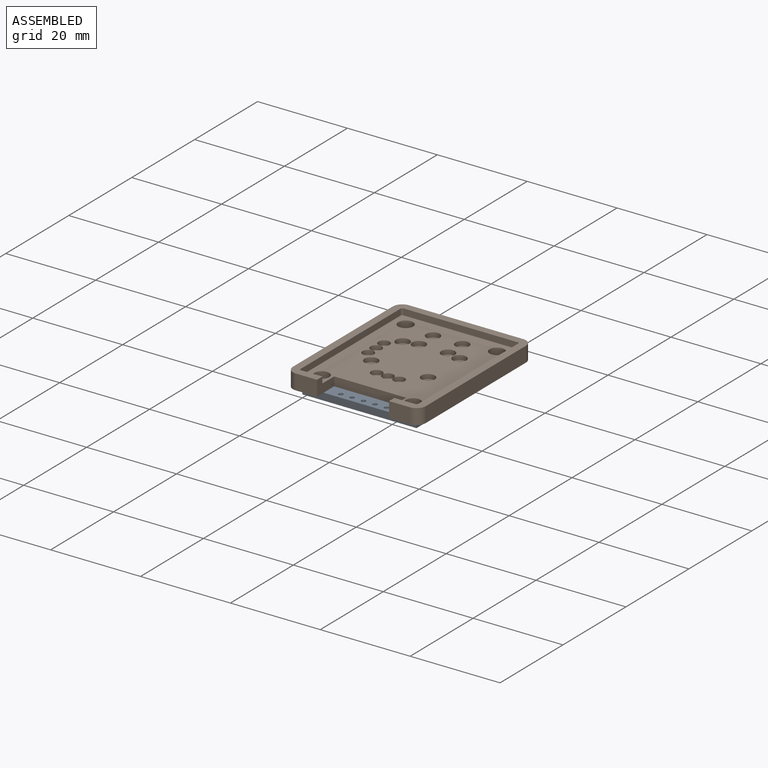
[diagram: assembled view]
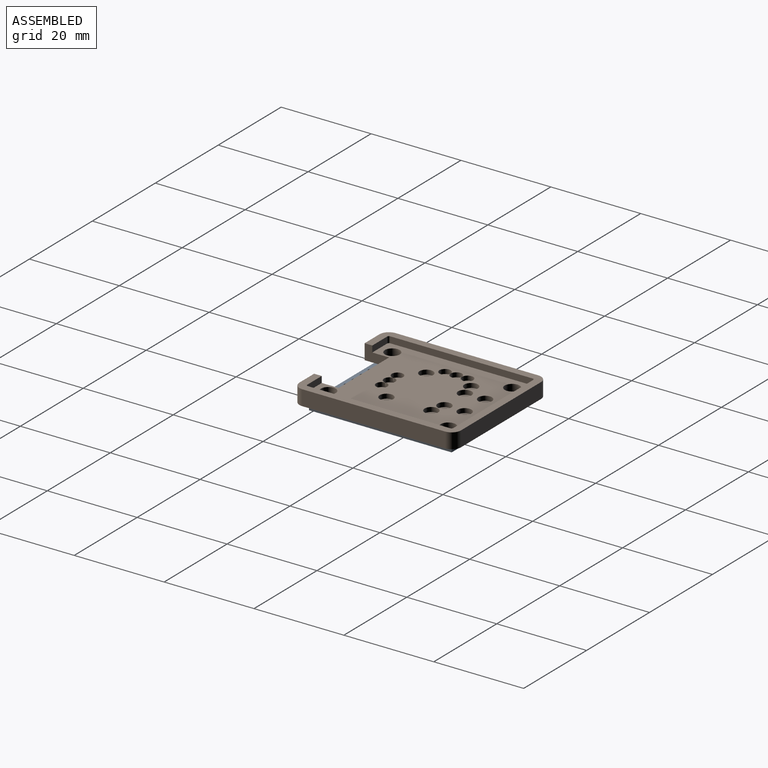
[diagram: assembled view, second angle]
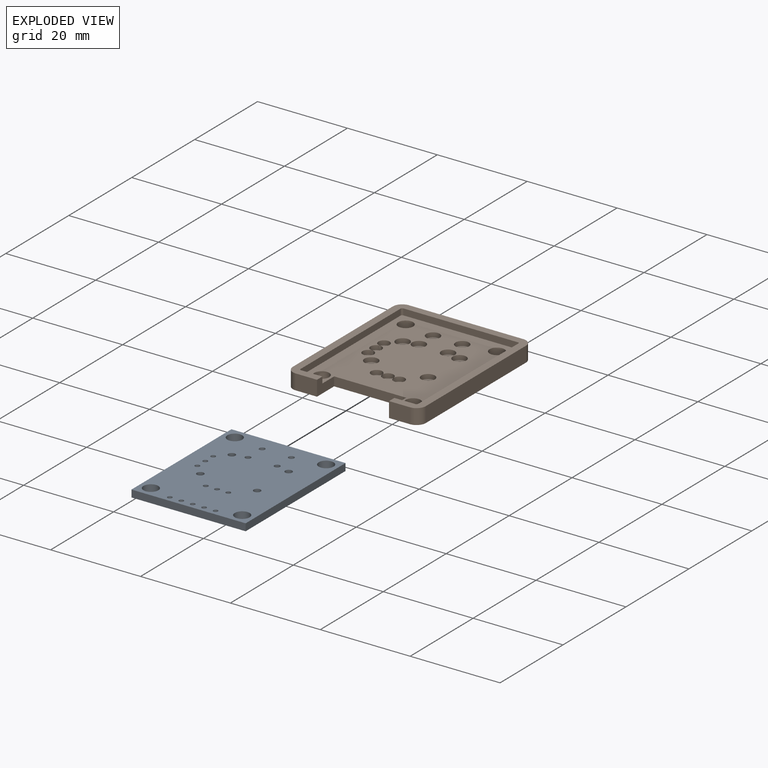
[diagram: exploded view]
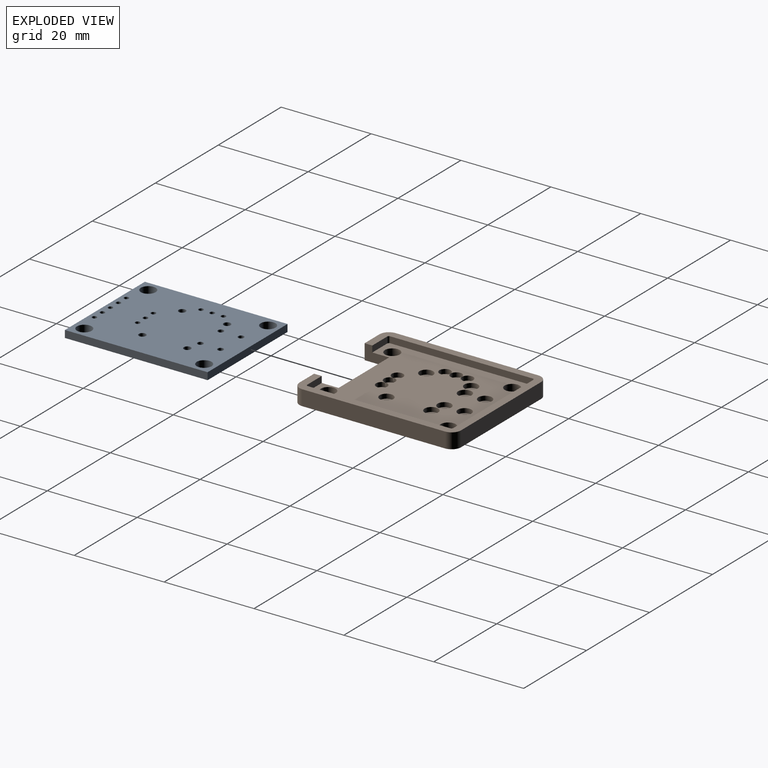
[diagram: exploded view, second angle]
FCSTD DOCUMENT  (FreeCAD 1.0RUnknown)
Label: thumbstick-breakout-orig
License: All rights reserved
LicenseURL: https://en.wikipedia.org/wiki/All_rights_reserved
objects: Sketcher::SketchObject×12, App::Part×4, PartDesign::Pad×4, PartDesign::ShapeBinder×2, PartDesign::Pocket×2, PartDesign::Body×2, PartDesign::CoordinateSystem×1, Part::Feature×1, App::Link×1, PartDesign::Plane×1
note: 49 computed .brp shape members not serialized (recipe doc carries the construction recipe); baked Part::Feature solids carry a one-line shape summary decoded from their .brp

FEATURE [PartDesign::CoordinateSystem] Local_CS_bbd4
  AttacherType = Attacher::AttachEngine3D
  MapMode = 2
FEATURE [Part::Feature] Pcb_bbd4
  Placement = pos=(-137.3,117.78,0) rot=(0,0,1;0rad)
  shape: bbox 25.4 x 31.75 x 1.6 mm, 29 faces (baked)
FEATURE [Sketcher::SketchObject] PCB_Sketch_bbd4
  ArcFitTolerance = 1e-06
  FullyConstrained = false
  MakeInternals = false
  sketch-geometry (4):
    g0: LineSegment StartX=0 StartY=31.75 StartZ=0 EndX=0 EndY=0 EndZ=0
    g1: LineSegment StartX=25.4 StartY=31.75 StartZ=0 EndX=0 EndY=31.75 EndZ=0
    g2: LineSegment StartX=0 StartY=0 StartZ=0 EndX=25.4 EndY=0 EndZ=0
    g3: LineSegment StartX=25.4 StartY=0 StartZ=0 EndX=25.4 EndY=31.75 EndZ=0
  constraints (4):
    c: Coincident(g0,g2)
    c: Coincident(g0,g1)
    c: Coincident(g2,g3)
    c: Coincident(g1,g3)
FEATURE [App::Part] Board_Geoms_bbd4
  Group = -> [Pcb_bbd4,PCB_Sketch_bbd4]
  Origin = -> Origin
FEATURE [App::Part] Step_Models_bbd4
  Origin = -> Origin002
FEATURE [App::Part] Board_bbd4  label="thumbstick-breakout"
  Group = -> [Local_CS_bbd4,Board_Geoms_bbd4,Step_Models_bbd4]
  Origin = -> Origin001
FEATURE [Sketcher::SketchObject] Sketch
  ArcFitTolerance = 1e-06
  FullyConstrained = false
  MakeInternals = false
  sketch-geometry (8):
    g0: LineSegment StartX=-0.1 StartY=31.75 StartZ=0 EndX=-0.1 EndY=0 EndZ=0
    g1: ArcOfCircle CenterX=0 CenterY=0 CenterZ=0 NormalX=0 NormalY=0 NormalZ=1 AngleXU=0 Radius=0.1 StartAngle=3.14159 EndAngle=4.71239
    g2: LineSegment StartX=0 StartY=-0.1 StartZ=0 EndX=25.4 EndY=-0.1 EndZ=0
    g3: ArcOfCircle CenterX=25.4 CenterY=0 CenterZ=0 NormalX=0 NormalY=0 NormalZ=1 AngleXU=1.5708 Radius=0.1 StartAngle=3.14159 EndAngle=4.71239
    g4: LineSegment StartX=25.5 StartY=0 StartZ=0 EndX=25.5 EndY=31.75 EndZ=0
    g5: ArcOfCircle CenterX=25.4 CenterY=31.75 CenterZ=0 NormalX=0 NormalY=0 NormalZ=1 AngleXU=-3.14159 Radius=0.1 StartAngle=3.14159 EndAngle=4.71239
    g6: LineSegment StartX=25.4 StartY=31.85 StartZ=0 EndX=0 EndY=31.85 EndZ=0
    g7: ArcOfCircle CenterX=0 CenterY=31.75 CenterZ=0 NormalX=0 NormalY=0 NormalZ=1 AngleXU=-1.5708 Radius=0.1 StartAngle=3.14159 EndAngle=4.71239
  constraints (12):
    c: Vertical(g0)
    c: Coincident(g0,g1)
    c: Coincident(g1,g2)
    c: Horizontal(g2)
    c: Coincident(g2,g3)
    c: Coincident(g3,g4)
    c: Vertical(g4)
    c: Coincident(g4,g5)
    c: Coincident(g5,g6)
    c: Horizontal(g6)
    c: Coincident(g6,g7)
    c: Coincident(g7,g0)
FEATURE [Sketcher::SketchObject] Sketch001
  ArcFitTolerance = 1e-06
  FullyConstrained = false
  MakeInternals = false
  sketch-geometry (8):
    g0: LineSegment StartX=-2.1 StartY=31.75 StartZ=0 EndX=-2.1 EndY=0 EndZ=0
    g1: ArcOfCircle CenterX=0 CenterY=0 CenterZ=0 NormalX=0 NormalY=0 NormalZ=1 AngleXU=0 Radius=2.1 StartAngle=3.14159 EndAngle=4.71239
    g2: LineSegment StartX=-4e-16 StartY=-2.1 StartZ=0 EndX=25.4 EndY=-2.1 EndZ=0
    g3: ArcOfCircle CenterX=25.4 CenterY=0 CenterZ=0 NormalX=0 NormalY=0 NormalZ=1 AngleXU=1.5708 Radius=2.1 StartAngle=3.14159 EndAngle=4.71239
    g4: LineSegment StartX=27.5 StartY=-6e-16 StartZ=0 EndX=27.5 EndY=31.75 EndZ=0
    g5: ArcOfCircle CenterX=25.4 CenterY=31.75 CenterZ=0 NormalX=0 NormalY=0 NormalZ=1 AngleXU=-3.14159 Radius=2.1 StartAngle=3.14159 EndAngle=4.71239
    g6: LineSegment StartX=25.4 StartY=33.85 StartZ=0 EndX=0 EndY=33.85 EndZ=0
    g7: ArcOfCircle CenterX=0 CenterY=31.75 CenterZ=0 NormalX=0 NormalY=0 NormalZ=1 AngleXU=-1.5708 Radius=2.1 StartAngle=3.14159 EndAngle=4.71239
  constraints (12):
    c: Vertical(g0)
    c: Coincident(g0,g1)
    c: Coincident(g1,g2)
    c: Horizontal(g2)
    c: Coincident(g2,g3)
    c: Coincident(g3,g4)
    c: Vertical(g4)
    c: Coincident(g4,g5)
    c: Coincident(g5,g6)
    c: Horizontal(g6)
    c: Coincident(g6,g7)
    c: Coincident(g7,g0)
FEATURE [Sketcher::SketchObject] Sketch003
  ArcFitTolerance = 1e-06
  FullyConstrained = false
  MakeInternals = false
  sketch-geometry (8):
    g0: LineSegment StartX=-2.1 StartY=31.75 StartZ=0 EndX=-2.1 EndY=0 EndZ=0
    g1: ArcOfCircle CenterX=0 CenterY=0 CenterZ=0 NormalX=0 NormalY=0 NormalZ=1 AngleXU=0 Radius=2.1 StartAngle=3.14159 EndAngle=4.71239
    g2: LineSegment StartX=-4e-16 StartY=-2.1 StartZ=0 EndX=25.4 EndY=-2.1 EndZ=0
    g3: ArcOfCircle CenterX=25.4 CenterY=0 CenterZ=0 NormalX=0 NormalY=0 NormalZ=1 AngleXU=1.5708 Radius=2.1 StartAngle=3.14159 EndAngle=4.71239
    g4: LineSegment StartX=27.5 StartY=-6e-16 StartZ=0 EndX=27.5 EndY=31.75 EndZ=0
    g5: ArcOfCircle CenterX=25.4 CenterY=31.75 CenterZ=0 NormalX=0 NormalY=0 NormalZ=1 AngleXU=-3.14159 Radius=2.1 StartAngle=3.14159 EndAngle=4.71239
    g6: LineSegment StartX=25.4 StartY=33.85 StartZ=0 EndX=0 EndY=33.85 EndZ=0
    g7: ArcOfCircle CenterX=0 CenterY=31.75 CenterZ=0 NormalX=0 NormalY=0 NormalZ=1 AngleXU=-1.5708 Radius=2.1 StartAngle=3.14159 EndAngle=4.71239
  constraints (12):
    c: Vertical(g0)
    c: Coincident(g0,g1)
    c: Coincident(g1,g2)
    c: Horizontal(g2)
    c: Coincident(g2,g3)
    c: Coincident(g3,g4)
    c: Vertical(g4)
    c: Coincident(g4,g5)
    c: Coincident(g5,g6)
    c: Horizontal(g6)
    c: Coincident(g6,g7)
    c: Coincident(g7,g0)
FEATURE [PartDesign::ShapeBinder] ShapeBinder
  Placement = pos=(-137.3,117.78,0) rot=(0,0,1;0rad)
  Support = -> [Pcb_bbd4]
  TraceSupport = false
FEATURE [Sketcher::SketchObject] Sketch002
  ArcFitTolerance = 1e-06
  ExternalGeometry = -> [ShapeBinder]
  FullyConstrained = false
  MakeInternals = false
  sketch-geometry (16):
    g0: Circle CenterX=2.54 CenterY=29.21 CenterZ=0 NormalX=0 NormalY=0 NormalZ=1 AngleXU=0 Radius=1.651
    g1: Circle CenterX=22.86 CenterY=29.21 CenterZ=0 NormalX=0 NormalY=0 NormalZ=1 AngleXU=0 Radius=1.651
    g2: Circle CenterX=22.86 CenterY=2.54 CenterZ=0 NormalX=0 NormalY=0 NormalZ=1 AngleXU=0 Radius=1.651
    g3: Circle CenterX=2.54 CenterY=2.54 CenterZ=0 NormalX=0 NormalY=0 NormalZ=1 AngleXU=0 Radius=1.651
    g4: LineSegment StartX=-2.1 StartY=31.75 StartZ=0 EndX=-2.1 EndY=-7.27461e-07 EndZ=0
    g5: ArcOfCircle CenterX=1.003e-13 CenterY=0 CenterZ=0 NormalX=0 NormalY=0 NormalZ=1 AngleXU=0 Radius=2.1 StartAngle=3.14159 EndAngle=4.71239
    g6: ArcOfCircle CenterX=25.4 CenterY=0 CenterZ=0 NormalX=0 NormalY=0 NormalZ=1 AngleXU=0 Radius=2.1 StartAngle=4.71239 EndAngle=6.28318
    g7: LineSegment StartX=27.5 StartY=-6.45077e-07 StartZ=0 EndX=27.5 EndY=31.75 EndZ=0
    g8: ArcOfCircle CenterX=25.4 CenterY=31.75 CenterZ=0 NormalX=0 NormalY=0 NormalZ=1 AngleXU=0 Radius=2.1 StartAngle=0 EndAngle=1.5708
    g9: LineSegment StartX=25.4 StartY=33.85 StartZ=0 EndX=6.86269e-07 EndY=33.85 EndZ=0
    g10: ArcOfCircle CenterX=0 CenterY=31.75 CenterZ=0 NormalX=0 NormalY=0 NormalZ=1 AngleXU=0 Radius=2.1 StartAngle=1.5708 EndAngle=3.14159
    g11: LineSegment StartX=20.762 StartY=-2.1 StartZ=0 EndX=20.762 EndY=3.34784 EndZ=0
    g12: LineSegment StartX=20.762 StartY=3.34784 StartZ=0 EndX=4.72625 EndY=3.34784 EndZ=0
    g13: LineSegment StartX=4.72625 StartY=3.34784 StartZ=0 EndX=4.72625 EndY=-2.1 EndZ=0
    g14: LineSegment StartX=20.762 StartY=-2.1 StartZ=0 EndX=25.4 EndY=-2.1 EndZ=0
    g15: LineSegment StartX=4.72625 StartY=-2.1 StartZ=0 EndX=4.11922e-08 EndY=-2.1 EndZ=0
  constraints (28):
    c: Coincident(g0,g-3)
    c: Equal(g0,g-3)
    c: Coincident(g1,g-4)
    c: Equal(g1,g-4)
    c: Coincident(g2,g-5)
    c: Equal(g2,g-5)
    c: Coincident(g3,g-6)
    c: Equal(g3,g-6)
    c: Vertical(g4)
    c: Coincident(g4,g5)
    c: Coincident(g6,g7)
    c: Vertical(g7)
    c: Coincident(g7,g8)
    c: Coincident(g8,g9)
    c: Horizontal(g9)
    c: Coincident(g9,g10)
    c: Coincident(g10,g4)
    c: Coincident(g11,g12)
    c: Coincident(g12,g13)
    c: Horizontal(g12)
    c: Vertical(g11)
    c: Vertical(g13)
    c: Coincident(g11,g14)
    c: Coincident(g14,g6)
    c: Horizontal(g14)
    c: Coincident(g13,g15)
    c: Coincident(g15,g5)
    c: Horizontal(g15)
FEATURE [PartDesign::Pad] Pad
  Direction = (0,0,1)
  Length = 2
  Length2 = 10
  Profile = -> Sketch002
  ReferenceAxis = -> Sketch002 [N_Axis]
  Refine = true
  Suppressed = false
  Type = 0
FEATURE [Sketcher::SketchObject] Sketch004
  ArcFitTolerance = 1e-06
  AttachmentSupport = -> [Pad]
  ExternalGeometry = -> [ShapeBinder]
  FullyConstrained = true
  MakeInternals = false
  MapMode = 5
  Placement = pos=(0,0,2) rot=(0,0,1;0rad)
  sketch-geometry (14):
    g0: Circle CenterX=9.45 CenterY=28.03 CenterZ=0 NormalX=0 NormalY=0 NormalZ=1 AngleXU=0 Radius=1.5
    g1: Circle CenterX=15.95 CenterY=28.03 CenterZ=0 NormalX=0 NormalY=0 NormalZ=1 AngleXU=0 Radius=1.5
    g2: Circle CenterX=19.025 CenterY=22.78 CenterZ=0 NormalX=0 NormalY=0 NormalZ=1 AngleXU=0 Radius=1.5
    g3: Circle CenterX=15.95 CenterY=23.53 CenterZ=0 NormalX=0 NormalY=0 NormalZ=1 AngleXU=0 Radius=1.5
    g4: Circle CenterX=9.45 CenterY=23.53 CenterZ=0 NormalX=0 NormalY=0 NormalZ=1 AngleXU=0 Radius=1.5
    g5: Circle CenterX=6.375 CenterY=22.78 CenterZ=0 NormalX=0 NormalY=0 NormalZ=1 AngleXU=0 Radius=1.5
    g6: Circle CenterX=3.97 CenterY=20.28 CenterZ=0 NormalX=0 NormalY=0 NormalZ=1 AngleXU=0 Radius=1.25
    g7: Circle CenterX=3.97 CenterY=17.78 CenterZ=0 NormalX=0 NormalY=0 NormalZ=1 AngleXU=0 Radius=1.25
    g8: Circle CenterX=3.97 CenterY=15.28 CenterZ=0 NormalX=0 NormalY=0 NormalZ=1 AngleXU=0 Radius=1.25
    g9: Circle CenterX=6.375 CenterY=12.78 CenterZ=0 NormalX=0 NormalY=0 NormalZ=1 AngleXU=0 Radius=1.5
    g10: Circle CenterX=10.2 CenterY=9.05 CenterZ=0 NormalX=0 NormalY=0 NormalZ=1 AngleXU=0 Radius=1.25
    g11: Circle CenterX=12.7 CenterY=9.05 CenterZ=0 NormalX=0 NormalY=0 NormalZ=1 AngleXU=0 Radius=1.25
    g12: Circle CenterX=15.2 CenterY=9.05 CenterZ=0 NormalX=0 NormalY=0 NormalZ=1 AngleXU=0 Radius=1.25
    g13: Circle CenterX=19.025 CenterY=12.78 CenterZ=0 NormalX=0 NormalY=0 NormalZ=1 AngleXU=0 Radius=1.5
  constraints (28):
    c: Coincident(g0,g-3)
    c: Coincident(g1,g-4)
    c: Coincident(g2,g-6)
    c: Coincident(g3,g-5)
    c: Coincident(g4,g-16)
    c: Coincident(g5,g-15)
    c: Coincident(g6,g-14)
    c: Coincident(g7,g-13)
    c: Coincident(g8,g-12)
    c: Coincident(g9,g-11)
    c: Coincident(g10,g-10)
    c: Coincident(g11,g-9)
    c: Coincident(g12,g-8)
    c: Coincident(g13,g-7)
    c: Diameter(g0) = 3
    c: Equal(g1,g3)
    c: Equal(g3,g2)
    c: Equal(g2,g4)
    c: Equal(g4,g5)
    c: Equal(g5,g9)
    c: Equal(g9,g13)
    c: Equal(g13,g0)
    c: Diameter(g6) = 2.5
    c: Equal(g6,g7)
    c: Equal(g7,g8)
    c: Equal(g8,g10)
    c: Equal(g10,g11)
    c: Equal(g11,g12)
FEATURE [PartDesign::Pocket] Pocket
  BaseFeature = -> Pad
  Direction = (0,0,-1)
  Length = 1
  Length2 = 5
  Profile = -> Sketch004
  ReferenceAxis = -> Sketch004 [N_Axis]
  Refine = true
  Suppressed = false
  Type = 0
FEATURE [Sketcher::SketchObject] Sketch005
  ArcFitTolerance = 1e-06
  AttachmentSupport = -> [Pocket]
  FullyConstrained = false
  MakeInternals = false
  MapMode = 5
  Placement = pos=(0,0,2) rot=(0,0,1;0rad)
  sketch-geometry (22):
    g0: LineSegment StartX=-2.1 StartY=31.75 StartZ=0 EndX=-2.1 EndY=-7.27461e-07 EndZ=0
    g1: ArcOfCircle CenterX=-4e-16 CenterY=0 CenterZ=0 NormalX=0 NormalY=0 NormalZ=1 AngleXU=0 Radius=2.1 StartAngle=3.14159 EndAngle=4.71239
    g2: ArcOfCircle CenterX=25.4 CenterY=0 CenterZ=0 NormalX=0 NormalY=0 NormalZ=1 AngleXU=0 Radius=2.1 StartAngle=4.71239 EndAngle=6.28318
    g3: LineSegment StartX=27.5 StartY=-6.45077e-07 StartZ=0 EndX=27.5 EndY=31.75 EndZ=0
    g4: ArcOfCircle CenterX=25.4 CenterY=31.75 CenterZ=0 NormalX=0 NormalY=0 NormalZ=1 AngleXU=0 Radius=2.1 StartAngle=0 EndAngle=1.5708
    g5: LineSegment StartX=25.4 StartY=33.85 StartZ=0 EndX=6.86269e-07 EndY=33.85 EndZ=0
    g6: ArcOfCircle CenterX=0 CenterY=31.75 CenterZ=0 NormalX=0 NormalY=0 NormalZ=1 AngleXU=0 Radius=2.1 StartAngle=1.5708 EndAngle=3.14159
    g7: LineSegment [constr] StartX=20.762 StartY=-2.1 StartZ=0 EndX=20.762 EndY=3.34784 EndZ=0
    g8: LineSegment [constr] StartX=4.72625 StartY=3.34784 StartZ=0 EndX=4.72625 EndY=-2.1 EndZ=0
    g9: LineSegment StartX=20.762 StartY=-2.1 StartZ=0 EndX=25.4 EndY=-2.1 EndZ=0
    g10: LineSegment StartX=4.72625 StartY=-2.1 StartZ=0 EndX=-9e-16 EndY=-2.1 EndZ=0
    g11: LineSegment StartX=-0.4 StartY=31.75 StartZ=0 EndX=-0.4 EndY=0.0158339 EndZ=0
    g12: ArcOfCircle CenterX=0 CenterY=0.015834 CenterZ=0 NormalX=0 NormalY=0 NormalZ=1 AngleXU=0 Radius=0.4 StartAngle=3.14159 EndAngle=4.71239
    g13: ArcOfCircle CenterX=25.4 CenterY=0 CenterZ=0 NormalX=0 NormalY=0 NormalZ=1 AngleXU=0 Radius=0.4 StartAngle=4.71239 EndAngle=6.28318
    g14: LineSegment StartX=25.8 StartY=-1.22872e-07 StartZ=0 EndX=25.8 EndY=31.75 EndZ=0
    g15: ArcOfCircle CenterX=25.4 CenterY=31.75 CenterZ=0 NormalX=0 NormalY=0 NormalZ=1 AngleXU=0 Radius=0.4 StartAngle=0 EndAngle=1.5708
    g16: LineSegment StartX=25.4 StartY=32.15 StartZ=0 EndX=1.30718e-07 EndY=32.15 EndZ=0
    g17: ArcOfCircle CenterX=0 CenterY=31.75 CenterZ=0 NormalX=0 NormalY=0 NormalZ=1 AngleXU=0 Radius=0.4 StartAngle=1.5708 EndAngle=3.14159
    g18: LineSegment StartX=4.72625 StartY=-0.384166 StartZ=0 EndX=7.84612e-09 EndY=-0.384166 EndZ=0
    g19: LineSegment StartX=4.72625 StartY=-0.384166 StartZ=0 EndX=4.72625 EndY=-2.1 EndZ=0
    g20: LineSegment StartX=20.762 StartY=-0.4 StartZ=0 EndX=25.4 EndY=-0.4 EndZ=0
    g21: LineSegment StartX=20.762 StartY=-0.4 StartZ=0 EndX=20.762 EndY=-2.1 EndZ=0
  constraints (36):
    c: Vertical(g0)
    c: Coincident(g0,g1)
    c: Coincident(g2,g3)
    c: Vertical(g3)
    c: Coincident(g3,g4)
    c: Coincident(g4,g5)
    c: Horizontal(g5)
    c: Coincident(g5,g6)
    c: Coincident(g6,g0)
    c: Vertical(g7)
    c: Vertical(g8)
    c: Coincident(g7,g9)
    c: Coincident(g9,g2)
    c: Horizontal(g9)
    c: Coincident(g8,g10)
    c: Coincident(g10,g1)
    c: Horizontal(g10)
    c: Vertical(g11)
    c: Coincident(g11,g12)
    c: Coincident(g13,g14)
    c: Vertical(g14)
    c: Coincident(g14,g15)
    c: Coincident(g15,g16)
    c: Horizontal(g16)
    c: Coincident(g16,g17)
    c: Coincident(g17,g11)
    c: PointOnObject(g18,g8)
    c: Coincident(g18,g12)
    c: Horizontal(g18)
    c: Coincident(g18,g19)
    c: Coincident(g19,g8)
    c: PointOnObject(g20,g7)
    c: Coincident(g20,g13)
    c: Horizontal(g20)
    c: Coincident(g20,g21)
    c: Coincident(g21,g7)
FEATURE [PartDesign::Pad] Pad001
  BaseFeature = -> Pocket
  Direction = (0,0,1)
  Length = 1.4
  Length2 = 10
  Profile = -> Sketch005
  ReferenceAxis = -> Sketch005 [N_Axis]
  Refine = true
  Suppressed = false
  Type = 0
FEATURE [PartDesign::Body] Body  label="base"
  AllowCompound = false
  Group = -> [ShapeBinder,Sketch002,Sketch003,Pad,Sketch004,Pocket,Sketch005,Pad001]
  Origin = -> Origin004
  Tip = -> Pad001
FEATURE [Sketcher::SketchObject] Sketch006
  ArcFitTolerance = 1e-06
  FullyConstrained = false
  MakeInternals = false
  sketch-geometry (8):
    g0: LineSegment StartX=-0.4 StartY=31.75 StartZ=0 EndX=-0.4 EndY=0 EndZ=0
    g1: ArcOfCircle CenterX=0 CenterY=0 CenterZ=0 NormalX=0 NormalY=0 NormalZ=1 AngleXU=0 Radius=0.4 StartAngle=3.14159 EndAngle=4.71239
    g2: LineSegment StartX=-1e-16 StartY=-0.4 StartZ=0 EndX=25.4 EndY=-0.4 EndZ=0
    g3: ArcOfCircle CenterX=25.4 CenterY=0 CenterZ=0 NormalX=0 NormalY=0 NormalZ=1 AngleXU=1.5708 Radius=0.4 StartAngle=3.14159 EndAngle=4.71239
    g4: LineSegment StartX=25.8 StartY=-1e-16 StartZ=0 EndX=25.8 EndY=31.75 EndZ=0
    g5: ArcOfCircle CenterX=25.4 CenterY=31.75 CenterZ=0 NormalX=0 NormalY=0 NormalZ=1 AngleXU=-3.14159 Radius=0.4 StartAngle=3.14159 EndAngle=4.71239
    g6: LineSegment StartX=25.4 StartY=32.15 StartZ=0 EndX=0 EndY=32.15 EndZ=0
    g7: ArcOfCircle CenterX=0 CenterY=31.75 CenterZ=0 NormalX=0 NormalY=0 NormalZ=1 AngleXU=-1.5708 Radius=0.4 StartAngle=3.14159 EndAngle=4.71239
  constraints (12):
    c: Vertical(g0)
    c: Coincident(g0,g1)
    c: Coincident(g1,g2)
    c: Horizontal(g2)
    c: Coincident(g2,g3)
    c: Coincident(g3,g4)
    c: Vertical(g4)
    c: Coincident(g4,g5)
    c: Coincident(g5,g6)
    c: Horizontal(g6)
    c: Coincident(g6,g7)
    c: Coincident(g7,g0)
FEATURE [PartDesign::ShapeBinder] ShapeBinder001
  Placement = pos=(-137.3,117.78,0) rot=(0,0,1;0rad)
  Support = -> [Pcb_bbd4]
  TraceSupport = false
FEATURE [Sketcher::SketchObject] PCB_Sketch_bbd005
  ArcFitTolerance = 1e-06
  FullyConstrained = false
  MakeInternals = false
  sketch-geometry (4):
    g0: LineSegment StartX=0 StartY=31.75 StartZ=0 EndX=0 EndY=0 EndZ=0
    g1: LineSegment StartX=25.4 StartY=31.75 StartZ=0 EndX=0 EndY=31.75 EndZ=0
    g2: LineSegment StartX=0 StartY=0 StartZ=0 EndX=25.4 EndY=0 EndZ=0
    g3: LineSegment StartX=25.4 StartY=0 StartZ=0 EndX=25.4 EndY=31.75 EndZ=0
  constraints (4):
    c: Coincident(g0,g2)
    c: Coincident(g0,g1)
    c: Coincident(g2,g3)
    c: Coincident(g1,g3)
FEATURE [Sketcher::SketchObject] Sketch007
  ArcFitTolerance = 1e-06
  FullyConstrained = false
  MakeInternals = false
  sketch-geometry (8):
    g0: LineSegment StartX=-2.1 StartY=31.75 StartZ=0 EndX=-2.1 EndY=0 EndZ=0
    g1: ArcOfCircle CenterX=0 CenterY=0 CenterZ=0 NormalX=0 NormalY=0 NormalZ=1 AngleXU=0 Radius=2.1 StartAngle=3.14159 EndAngle=4.71239
    g2: LineSegment StartX=-4e-16 StartY=-2.1 StartZ=0 EndX=25.4 EndY=-2.1 EndZ=0
    g3: ArcOfCircle CenterX=25.4 CenterY=0 CenterZ=0 NormalX=0 NormalY=0 NormalZ=1 AngleXU=1.5708 Radius=2.1 StartAngle=3.14159 EndAngle=4.71239
    g4: LineSegment StartX=27.5 StartY=-6e-16 StartZ=0 EndX=27.5 EndY=31.75 EndZ=0
    g5: ArcOfCircle CenterX=25.4 CenterY=31.75 CenterZ=0 NormalX=0 NormalY=0 NormalZ=1 AngleXU=-3.14159 Radius=2.1 StartAngle=3.14159 EndAngle=4.71239
    g6: LineSegment StartX=25.4 StartY=33.85 StartZ=0 EndX=0 EndY=33.85 EndZ=0
    g7: ArcOfCircle CenterX=0 CenterY=31.75 CenterZ=0 NormalX=0 NormalY=0 NormalZ=1 AngleXU=-1.5708 Radius=2.1 StartAngle=3.14159 EndAngle=4.71239
  constraints (12):
    c: Vertical(g0)
    c: Coincident(g0,g1)
    c: Coincident(g1,g2)
    c: Horizontal(g2)
    c: Coincident(g2,g3)
    c: Coincident(g3,g4)
    c: Vertical(g4)
    c: Coincident(g4,g5)
    c: Coincident(g5,g6)
    c: Horizontal(g6)
    c: Coincident(g6,g7)
    c: Coincident(g7,g0)
FEATURE [App::Link] Link  label="thumbstick-breakout001"
  LinkPlacement = pos=(0,-4.17232e-07,3.6) rot=(0,0,1;0rad)
  LinkedObject = -> Board_bbd4
  Placement = pos=(0,-4.17232e-07,3.6) rot=(0,0,1;0rad)
FEATURE [PartDesign::Pad] Pad002
  Direction = (0,0,1)
  Length = 16
  Length2 = 10
  Profile = -> Sketch007
  ReferenceAxis = -> Sketch007 [N_Axis]
  Refine = true
  Suppressed = false
  Type = 0
FEATURE [PartDesign::Plane] DatumPlane
  AttachmentOffset = pos=(0,0,-2) rot=(0,0,1;0rad)
  AttachmentSupport = -> [Pad002]
  Length = 63.6169
  MapMode = 5
  Placement = pos=(0,0,14) rot=(0,0,1;0rad)
  ResizeMode = 0
  Width = 69.9669
FEATURE [PartDesign::Pocket] Pocket001
  BaseFeature = -> Pad002
  Direction = (0,0,-1)
  Length = 5
  Length2 = 5
  Profile = -> PCB_Sketch_bbd005
  ReferenceAxis = -> PCB_Sketch_bbd005 [N_Axis]
  Refine = true
  Reversed = true
  Suppressed = false
  Type = 5
  UpToShape = -> [DatumPlane]
FEATURE [Sketcher::SketchObject] Sketch008
  ArcFitTolerance = 1e-06
  AttachmentSupport = -> [Pocket001]
  ExternalGeometry = -> [ShapeBinder001]
  FullyConstrained = false
  MakeInternals = false
  MapMode = 5
  Placement = pos=(0,0,0) rot=(1,0,0;3.14159rad)
  sketch-geometry (20):
    g0: Circle [constr] CenterX=2.54 CenterY=-2.54 CenterZ=0 NormalX=0 NormalY=0 NormalZ=1 AngleXU=0 Radius=3
    g1: Circle [constr] CenterX=22.86 CenterY=-2.54 CenterZ=0 NormalX=0 NormalY=0 NormalZ=1 AngleXU=0 Radius=3
    g2: Circle [constr] CenterX=22.86 CenterY=-29.21 CenterZ=0 NormalX=0 NormalY=0 NormalZ=1 AngleXU=0 Radius=3
    g3: Circle [constr] CenterX=2.54 CenterY=-29.21 CenterZ=0 NormalX=0 NormalY=0 NormalZ=1 AngleXU=0 Radius=3
    g4: Circle CenterX=2.54 CenterY=-2.54 CenterZ=0 NormalX=0 NormalY=0 NormalZ=1 AngleXU=0 Radius=1.65
    g5: Circle CenterX=22.86 CenterY=-2.54 CenterZ=0 NormalX=0 NormalY=0 NormalZ=1 AngleXU=0 Radius=1.65
    g6: Circle CenterX=22.86 CenterY=-29.21 CenterZ=0 NormalX=0 NormalY=0 NormalZ=1 AngleXU=0 Radius=1.65
    g7: Circle CenterX=2.54 CenterY=-29.21 CenterZ=0 NormalX=0 NormalY=0 NormalZ=1 AngleXU=0 Radius=1.65
    g8: ArcOfCircle CenterX=2.54 CenterY=-2.54 CenterZ=0 NormalX=0 NormalY=0 NormalZ=1 AngleXU=0 Radius=3 StartAngle=3.69685 EndAngle=7.29447
    g9: ArcOfCircle CenterX=22.86 CenterY=-2.54 CenterZ=0 NormalX=0 NormalY=0 NormalZ=1 AngleXU=0 Radius=3 StartAngle=2.12958 EndAngle=5.72379
    g10: ArcOfCircle CenterX=22.86 CenterY=-29.21 CenterZ=0 NormalX=0 NormalY=0 NormalZ=1 AngleXU=0 Radius=3 StartAngle=0.558962 EndAngle=4.15105
    g11: ArcOfCircle CenterX=2.54 CenterY=-29.21 CenterZ=0 NormalX=0 NormalY=0 NormalZ=1 AngleXU=0 Radius=3 StartAngle=5.26483 EndAngle=8.86733
    g12: LineSegment StartX=-0.441952 StartY=0.853646 StartZ=0 EndX=4.13233 EndY=0.0025369 EndZ=0
    g13: LineSegment StartX=-0.441952 StartY=0.853646 StartZ=0 EndX=-0.00930062 EndY=-4.12148 EndZ=0
    g14: LineSegment StartX=26.0022 StartY=0.859798 StartZ=0 EndX=21.2695 EndY=0.00370015 EndZ=0
    g15: LineSegment StartX=26.0022 StartY=0.859798 StartZ=0 EndX=25.4027 EndY=-4.13202 EndZ=0
    g16: LineSegment StartX=26.2817 StartY=-32.3942 StartZ=0 EndX=25.4034 EndY=-27.6191 EndZ=0
    g17: LineSegment StartX=26.2817 StartY=-32.3942 StartZ=0 EndX=21.263 EndY=-31.7496 EndZ=0
    g18: LineSegment StartX=-0.605919 StartY=-32.7383 StartZ=0 EndX=4.11429 EndY=-31.7637 EndZ=0
    g19: LineSegment StartX=-0.605919 StartY=-32.7383 StartZ=0 EndX=-0.00581747 EndY=-27.6229 EndZ=0
  constraints (36):
    c: Diameter(g0) = 6
    c: Coincident(g0,g-3)
    c: Diameter(g1) = 6
    c: Coincident(g1,g-4)
    c: Diameter(g2) = 6
    c: Coincident(g2,g-5)
    c: Diameter(g3) = 6
    c: Coincident(g3,g-6)
    c: Diameter(g4) = 3.3
    c: Coincident(g4,g0)
    c: Diameter(g5) = 3.3
    c: Coincident(g5,g1)
    c: Diameter(g6) = 3.3
    c: Coincident(g6,g2)
    c: Diameter(g7) = 3.3
    c: Coincident(g7,g3)
    c: Coincident(g8,g0)
    c: PointOnObject(g8,g0)
    c: Coincident(g9,g1)
    c: PointOnObject(g9,g1)
    c: Coincident(g10,g2)
    c: PointOnObject(g10,g2)
    c: Coincident(g11,g3)
    c: PointOnObject(g11,g3)
    c: Coincident(g12,g8)
    c: Coincident(g12,g13)
    c: Coincident(g13,g8)
    c: Coincident(g14,g9)
    c: Coincident(g14,g15)
    c: Coincident(g15,g9)
    c: Coincident(g16,g10)
    c: Coincident(g16,g17)
    c: Coincident(g17,g10)
    c: Coincident(g18,g11)
    c: Coincident(g18,g19)
    c: Coincident(g19,g11)
FEATURE [PartDesign::Pad] Pad003
  BaseFeature = -> Pocket001
  Direction = (0,0,-1)
  Length = 3
  Length2 = 10
  Profile = -> Sketch008
  ReferenceAxis = -> Sketch008 [N_Axis]
  Refine = true
  Reversed = true
  Suppressed = false
  Type = 0
FEATURE [Sketcher::SketchObject] Sketch009
  ArcFitTolerance = 1e-06
  AttachmentSupport = -> [Pad003]
  ExternalGeometry = -> [Pad003]
  FullyConstrained = true
  MakeInternals = false
  MapMode = 5
  Placement = pos=(0,0,16) rot=(0,0,1;0rad)
  sketch-geometry (3):
    g0: LineSegment [constr] StartX=12.7011 StartY=31.75 StartZ=0 EndX=12.7011 EndY=17.78 EndZ=0
    g1: LineSegment [constr] StartX=12.7011 StartY=17.78 StartZ=0 EndX=25.4 EndY=17.78 EndZ=0
    g2: Circle [constr] CenterX=12.7011 CenterY=17.78 CenterZ=0 NormalX=0 NormalY=0 NormalZ=1 AngleXU=0 Radius=12
  constraints (8):
    c: Symmetric(g-3,g-3,g0)
    c: Vertical(g0)
    c: Coincident(g0,g1)
    c: PointOnObject(g1,g-4)
    c: Horizontal(g1)
    c: DistanceY(g0,g0) = 13.97
    c: Diameter(g2) = 24
    c: Coincident(g2,g0)
FEATURE [PartDesign::Body] Body001  label="top"
  AllowCompound = false
  Group = -> [ShapeBinder001,Sketch007,Pad002,DatumPlane,PCB_Sketch_bbd005,Pocket001,Sketch008,Pad003,Sketch009]
  Origin = -> Origin005
  Placement = pos=(0,0,3.6) rot=(0,0,1;0rad)
  Tip = -> Pad003
FEATURE [App::Part] Part  label="case"
  Group = -> [Body,Body001,Link]
  Origin = -> Origin003
